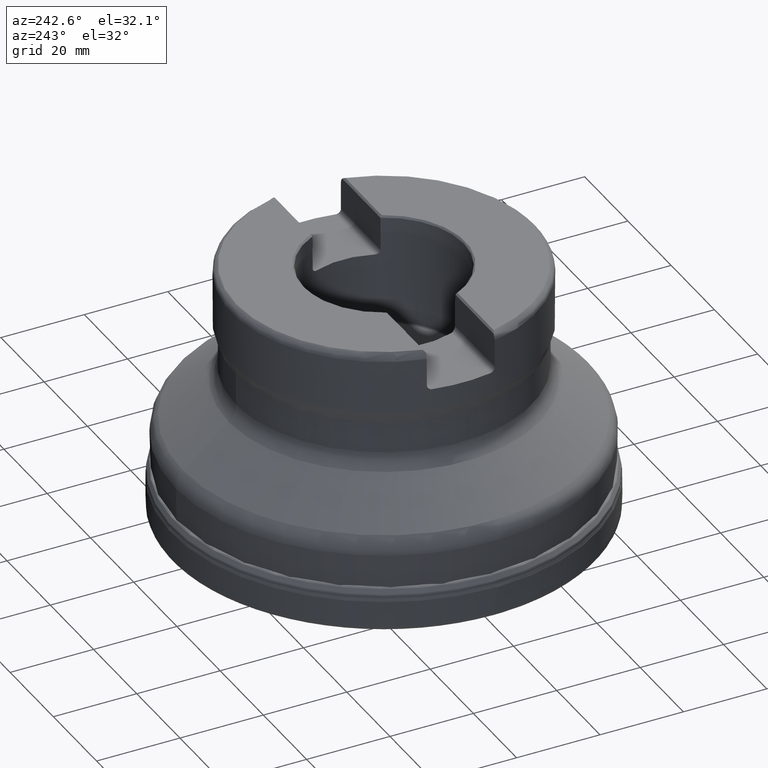
[diagram: clean part render]
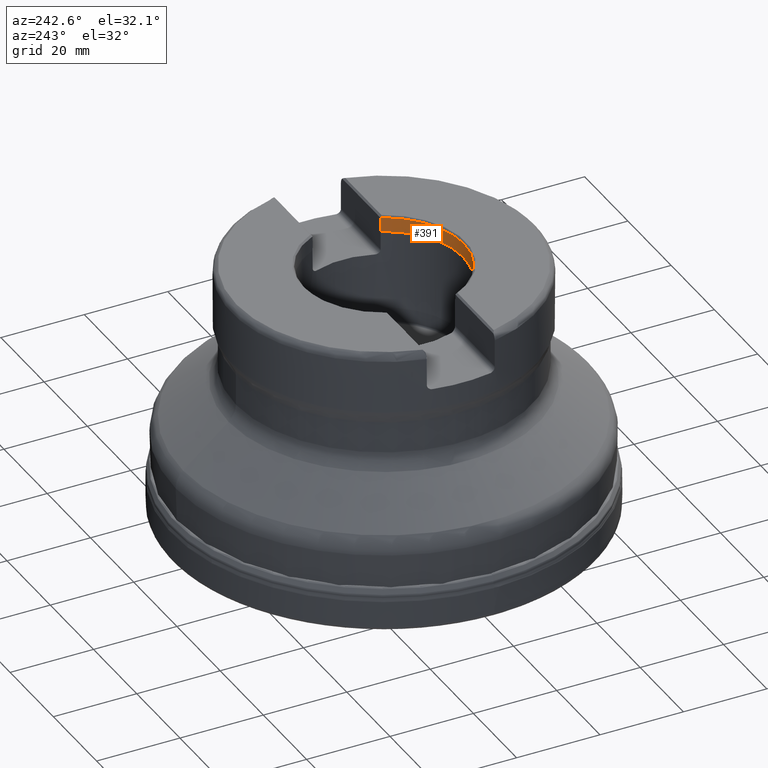
[diagram: same view with one face highlighted and labeled with its STEP entity id]
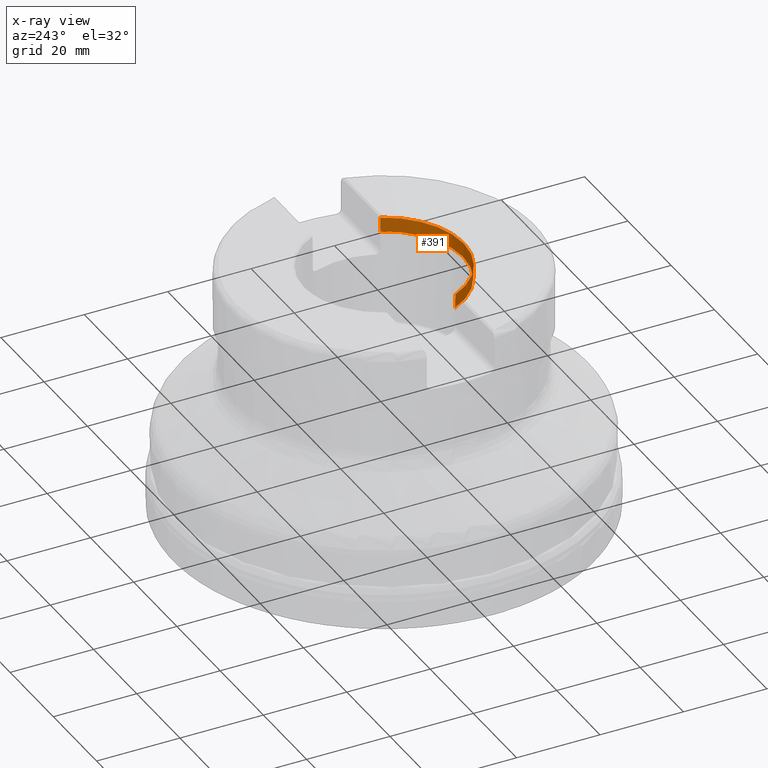
[diagram: x-ray of the same camera — body ghosted, the highlighted face saturated]
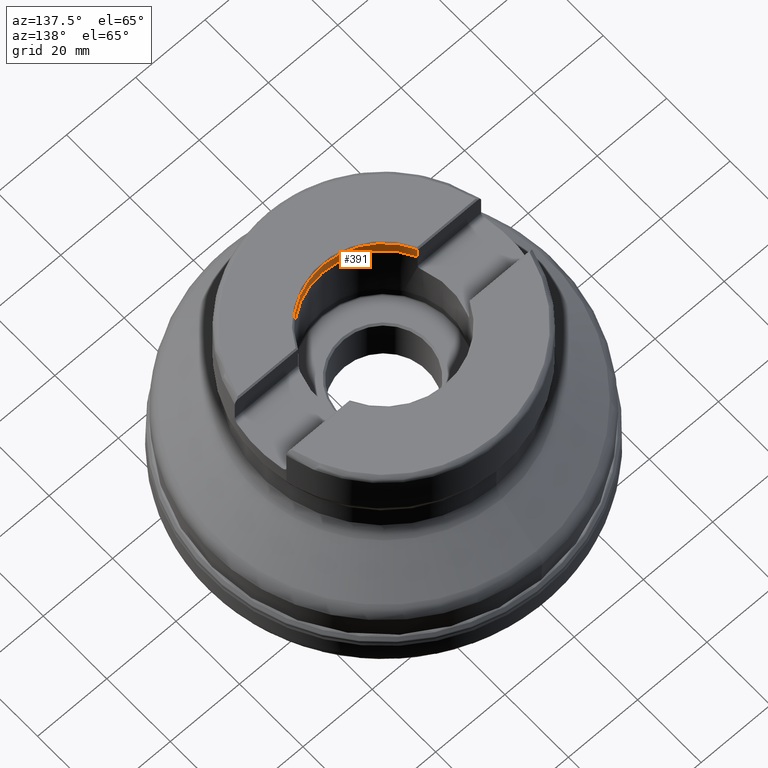
[diagram: same view with one face highlighted and labeled with its STEP entity id]
A machine part, auxiliary view. The second image highlights one B-rep face of the part: STEP entity #391.
The next image is the same camera in x-ray: the body ghosted, the highlighted face saturated — about 0% of this face is hidden behind the body in this view.
A second angle (auxiliary view) of the same face is appended — the face is thin or edge-on in the first view.
In plain terms, the highlighted conical surface has half-angle 1.5 deg.
Its self-contained STEP definition (entity closure, byte-faithful):
#282=CONICAL_SURFACE('',#1262,19.05,1.5);
#305=ELLIPSE('',#1208,26.7835999634305,18.9323708317608);
#306=ELLIPSE('',#1213,26.7835999634305,18.9323708317608);
#391=ADVANCED_FACE('',(#471),#282,.F.);
#471=FACE_OUTER_BOUND('',#515,.T.);
#515=EDGE_LOOP('',(#809,#810,#811,#812,#813,#814));
#611=CIRCLE('',#1211,19.139037517292);
#635=CIRCLE('',#1258,19.05);
#809=ORIENTED_EDGE('',*,*,#1084,.T.);
#810=ORIENTED_EDGE('',*,*,#1036,.T.);
#811=ORIENTED_EDGE('',*,*,#1034,.T.);
#812=ORIENTED_EDGE('',*,*,#1031,.T.);
#813=ORIENTED_EDGE('',*,*,#1086,.T.);
#814=ORIENTED_EDGE('',*,*,#1089,.F.);
#928=VERTEX_POINT('',#1966);
#929=VERTEX_POINT('',#1969);
#931=VERTEX_POINT('',#1977);
#932=VERTEX_POINT('',#1983);
#969=VERTEX_POINT('',#2231);
#970=VERTEX_POINT('',#2241);
#1031=EDGE_CURVE('',#928,#929,#305,.T.);
#1034=EDGE_CURVE('',#931,#928,#611,.T.);
#1036=EDGE_CURVE('',#932,#931,#306,.T.);
#1084=EDGE_CURVE('',#969,#932,#1171,.T.);
#1086=EDGE_CURVE('',#929,#970,#1172,.T.);
#1089=EDGE_CURVE('',#969,#970,#635,.T.);
#1171=B_SPLINE_CURVE_WITH_KNOTS('',3,(#2224,#2225,#2226,#2227,#2228,#2229,
#2230),.UNSPECIFIED.,.F.,.F.,(4,3,4),(0.,0.562482708012885,1.),
 .UNSPECIFIED.);
#1172=B_SPLINE_CURVE_WITH_KNOTS('',3,(#2234,#2235,#2236,#2237,#2238,#2239,
#2240),.UNSPECIFIED.,.F.,.F.,(4,3,4),(0.,0.437517291987118,1.),
 .UNSPECIFIED.);
#1208=AXIS2_PLACEMENT_3D('',#1970,#1352,#1353);
#1211=AXIS2_PLACEMENT_3D('',#1979,#1358,#1359);
#1213=AXIS2_PLACEMENT_3D('',#1982,#1363,#1364);
#1258=AXIS2_PLACEMENT_3D('',#2246,#1470,#1471);
#1262=AXIS2_PLACEMENT_3D('',#2250,#1478,#1479);
#1352=DIRECTION('',(-7.65575925762771E-16,0.707106781186552,0.707106781186543));
#1353=DIRECTION('',(1.39818113439471E-15,-0.707106781186543,0.707106781186552));
#1358=DIRECTION('',(-1.20284475693078E-17,1.78581628509934E-15,1.));
#1359=DIRECTION('',(0.,1.,-1.81275936620062E-15));
#1363=DIRECTION('',(-7.65575925762771E-16,0.707106781186552,0.707106781186543));
#1364=DIRECTION('',(1.39818113439471E-15,-0.707106781186543,0.707106781186552));
#1470=DIRECTION('',(4.47319432837584E-16,1.56003342320133E-15,1.));
#1471=DIRECTION('',(-1.08268785724004E-15,1.,-1.45698559662094E-15));
#1478=DIRECTION('',(4.47319432837584E-16,1.56003342320133E-15,1.));
#1479=DIRECTION('',(1.08268785724004E-15,-1.,-1.38054101627287E-15));
#1966=CARTESIAN_POINT('',(17.3216572473999,-8.14020560501456,59.9252056050147));
#1969=CARTESIAN_POINT('',(17.3217479199081,-8.13999999999989,59.925));
#1970=CARTESIAN_POINT('',(2.41450557093704E-14,-0.495931637655818,52.2809316376558));
#1977=CARTESIAN_POINT('',(-17.3216572473998,-8.14020560501459,59.9252056050147));
#1979=CARTESIAN_POINT('',(2.68057089839108E-14,9.34853236360344E-14,59.9252056050147));
#1982=CARTESIAN_POINT('',(2.41450557093704E-14,-0.495931637655818,52.2809316376558));
#1983=CARTESIAN_POINT('',(-17.321747919908,-8.13999999999992,59.925));
#2224=CARTESIAN_POINT('',(-17.2233243016556,-8.13999999999993,56.525));
#2225=CARTESIAN_POINT('',(-17.241787737125,-8.13999999999993,57.1624801250739));
#2226=CARTESIAN_POINT('',(-17.2602457564619,-8.13999999999993,57.7999604070386));
#2227=CARTESIAN_POINT('',(-17.2786984115605,-8.13999999999993,58.4374408442548));
#2228=CARTESIAN_POINT('',(-17.2930514851347,-8.13999999999993,58.9332938024682));
#2229=CARTESIAN_POINT('',(-17.3074013132064,-8.13999999999993,59.4291468546372));
#2230=CARTESIAN_POINT('',(-17.321747919908,-8.13999999999992,59.925));
#2231=CARTESIAN_POINT('',(-17.2233243016556,-8.13999999999993,56.525));
#2234=CARTESIAN_POINT('',(17.3217479199081,-8.13999999999989,59.925));
#2235=CARTESIAN_POINT('',(17.3074013132064,-8.13999999999989,59.4291468546372));
#2236=CARTESIAN_POINT('',(17.2930514851348,-8.13999999999989,58.9332938024682));
#2237=CARTESIAN_POINT('',(17.2786984115605,-8.13999999999989,58.4374408442548));
#2238=CARTESIAN_POINT('',(17.260245756462,-8.13999999999989,57.7999604070386));
#2239=CARTESIAN_POINT('',(17.2417877371251,-8.13999999999989,57.1624801250739));
#2240=CARTESIAN_POINT('',(17.2233243016556,-8.13999999999989,56.525));
#2241=CARTESIAN_POINT('',(17.2233243016556,-8.13999999999989,56.525));
#2246=CARTESIAN_POINT('',(2.52847309411445E-14,8.8180889246455E-14,56.525));
#2250=CARTESIAN_POINT('',(2.52847309411445E-14,8.8180889246455E-14,56.525));